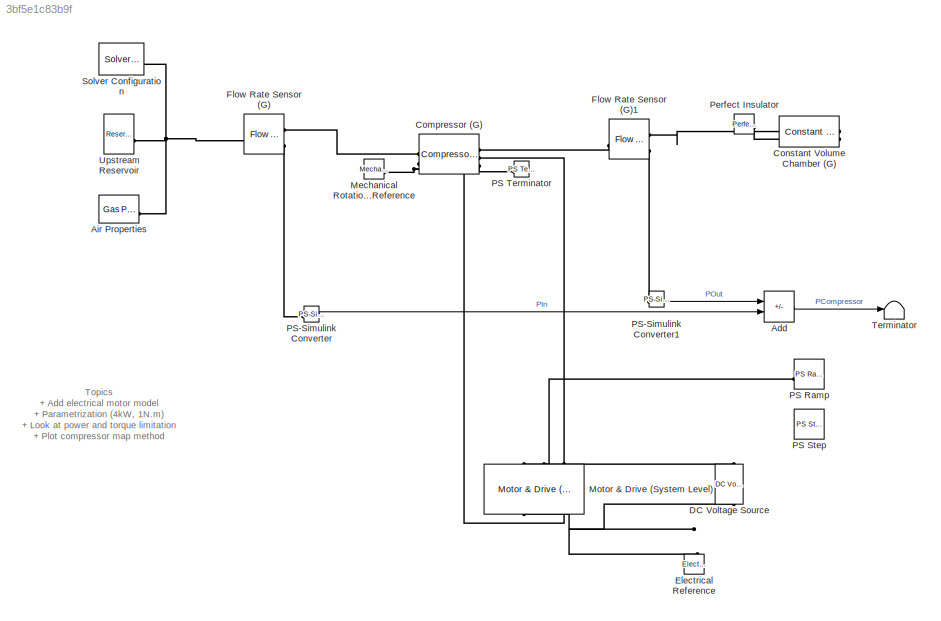
MODEL slx_3bf5e1c83b9f
KIND model
CONFIG AbsTol = 1e-3
CONFIG EnableMultiTasking = off
CONFIG FixedStep = auto
CONFIG MaxStep = auto
CONFIG MinStep = auto
CONFIG PreLoadFcn = load param_model\n\n% omega_TLU = [1000, 1500, 2000, 2500, 3000, 3500];\n% beta_TLU = linspace(0,1,7);\n% \n% mdot_TLU = [0.1377    0.1304    0.1187    0.1029    0.0854    0.0658    0.0437\n%     0.2310    0.2183    0.1978    0.1688    0.1400    0.1118    0.0750\n%     0.3298    0.3208    0.2987    0.2677    0.2256    0.1774    0.1194\n%     0.4520    0.4260    0.3825    0.3308    0.2745    0.2227    0.16...<+1049ch>
CONFIG RelTol = 1e-3
CONFIG SampleTimeConstraint = Unconstrained
CONFIG SolverName = VariableStepAuto
CONFIG StartTime = 0.0
CONFIG StopTime = 30
BLOCK [Sum] Add
  IconShape = rectangular
  Inputs = +-
BLOCK [Reference] Air Properties  REF=fl_lib/Gas/Utilities/Gas Properties (G)
  SourceBlock = fl_lib/Gas/Utilities/Gas Properties (G)
  SourceType = Gas Properties (G)
BLOCK [Reference] Compressor (G)  REF=SimscapeFluids_lib/Gas/Turbomachinery/Compressor (G)
  SourceBlock = SimscapeFluids_lib/Gas/Turbomachinery/Compressor (G)
  SourceType = Compressor (G)
BLOCK [Reference] Constant Volume Chamber (G)  REF=fl_lib/Gas/Elements/Constant Volume
Chamber (G)
  NameLocation = top
  SourceBlock = fl_lib/Gas/Elements/Constant Volume\nChamber (G)
  SourceType = Constant Volume\nChamber (G)
BLOCK [Reference] DC Voltage Source  REF=ee_lib/Additional
Components/SPICE Sources/DC Voltage Source
  NameLocation = right
  SourceBlock = ee_lib/Additional\nComponents/SPICE Sources/DC Voltage Source
  SourceType = DC Voltage Source
BLOCK [Reference] Electrical Reference  REF=fl_lib/Electrical/Electrical Elements/Electrical Reference
  NameLocation = right
  SourceBlock = fl_lib/Electrical/Electrical Elements/Electrical Reference
  SourceType = Electrical Reference
BLOCK [Reference] Flow Rate Sensor (G)  REF=fl_lib/Gas/Sensors/Flow Rate Sensor (G)
  SourceBlock = fl_lib/Gas/Sensors/Flow Rate Sensor (G)
  SourceType = Flow Rate Sensor (G)
BLOCK [Reference] Flow Rate Sensor (G)1  REF=fl_lib/Gas/Sensors/Flow Rate Sensor (G)
  SourceBlock = fl_lib/Gas/Sensors/Flow Rate Sensor (G)
  SourceType = Flow Rate Sensor (G)
BLOCK [Reference] Mechanical Rotational Reference  REF=fl_lib/Mechanical/Rotational Elements/Mechanical
Rotational Reference
  SourceBlock = fl_lib/Mechanical/Rotational Elements/Mechanical\nRotational Reference
  SourceType = Mechanical\nRotational Reference
BLOCK [Reference] Motor & Drive (System Level)  REF=ee_lib/Electromechanical/Motor & Drive
(System Level)
  NameLocation = right
  SourceBlock = ee_lib/Electromechanical/Motor & Drive\n(System Level)
  SourceType = Motor & Drive\n(System Level)
BLOCK [Reference] PS Ramp  REF=fl_lib/Physical Signals/Sources/PS Ramp
  SourceBlock = fl_lib/Physical Signals/Sources/PS Ramp
  SourceType = PS Ramp
BLOCK [Reference] PS Step  REF=fl_lib/Physical Signals/Sources/PS Step
  SourceBlock = fl_lib/Physical Signals/Sources/PS Step
  SourceType = PS Step
BLOCK [Reference] PS Terminator  REF=fl_lib/Physical Signals/Sinks/PS Terminator
  SourceBlock = fl_lib/Physical Signals/Sinks/PS Terminator
  SourceType = PS Terminator
BLOCK [Reference] PS-Simulink Converter  REF=nesl_utility/PS-Simulink
Converter
  SourceBlock = nesl_utility/PS-Simulink\nConverter
  SourceType = PS-Simulink\nConverter
BLOCK [Reference] PS-Simulink Converter1  REF=nesl_utility/PS-Simulink
Converter
  SourceBlock = nesl_utility/PS-Simulink\nConverter
  SourceType = PS-Simulink\nConverter
BLOCK [Reference] Perfect Insulator  REF=fl_lib/Thermal/Thermal Elements/Perfect Insulator
  SourceBlock = fl_lib/Thermal/Thermal Elements/Perfect Insulator
  SourceType = Perfect Insulator
BLOCK [Reference] Solver Configuration  REF=nesl_utility/Solver
Configuration
  SourceBlock = nesl_utility/Solver\nConfiguration
  SourceType = Solver\nConfiguration
BLOCK [Terminator] Terminator
BLOCK [Reference] Upstream Reservoir  REF=fl_lib/Gas/Elements/Reservoir (G)
  SourceBlock = fl_lib/Gas/Elements/Reservoir (G)
  SourceType = Reservoir (G)
ANNOTATION (root): Topics + Add electrical motor model + Parametrization (4kW, 1N.m) + Look at power and torque limitation + Plot compressor map method
LINE Add:1 -> Terminator:1
LINE PS-Simulink Converter1:1 -> Add:1
LINE PS-Simulink Converter:1 -> Add:2
PNET net1: Air Properties:RConn1 -- Flow Rate Sensor (G):LConn1 -- Solver Configuration:RConn1 -- Upstream Reservoir:LConn1
PLINE Compressor (G):LConn1 -- Flow Rate Sensor (G):RConn1
PNET net2: Compressor (G):LConn2 -- Mechanical Rotational Reference:LConn1 -- Motor & Drive (System Level):RConn3
PLINE Compressor (G):RConn1 -- Flow Rate Sensor (G)1:LConn1
PLINE Compressor (G):RConn2 -- Motor & Drive (System Level):LConn3
PLINE Compressor (G):RConn3 -- PS Terminator:LConn1
PLINE Constant Volume Chamber (G):LConn1 -- Flow Rate Sensor (G)1:RConn1
PLINE Constant Volume Chamber (G):LConn2 -- Perfect Insulator:LConn1
PLINE DC Voltage Source:LConn1 -- Motor & Drive (System Level):LConn1
PNET net3: DC Voltage Source:RConn1 -- Electrical Reference:LConn1 -- Motor & Drive (System Level):RConn1
PLINE Flow Rate Sensor (G)1:RConn3 -- PS-Simulink Converter1:LConn1
PLINE Flow Rate Sensor (G):RConn3 -- PS-Simulink Converter:LConn1
PLINE Motor & Drive (System Level):LConn2 -- PS Ramp:RConn1
note: PNET lines group multi-terminal physical nets as a canonical sorted terminal list (undirected conserving connections); 2-terminal nets keep the pairwise PLINE form
